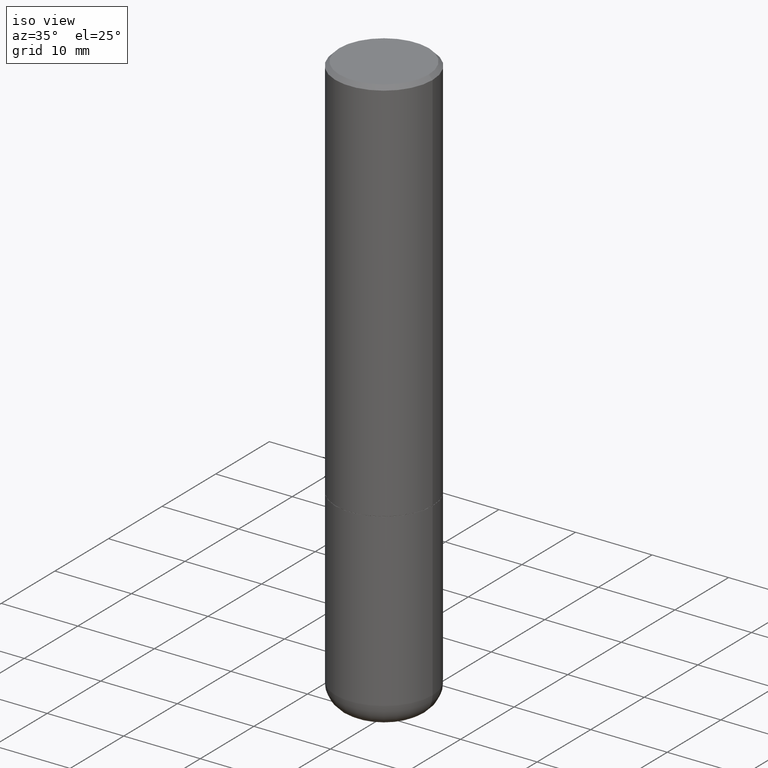
[diagram: clean part render]
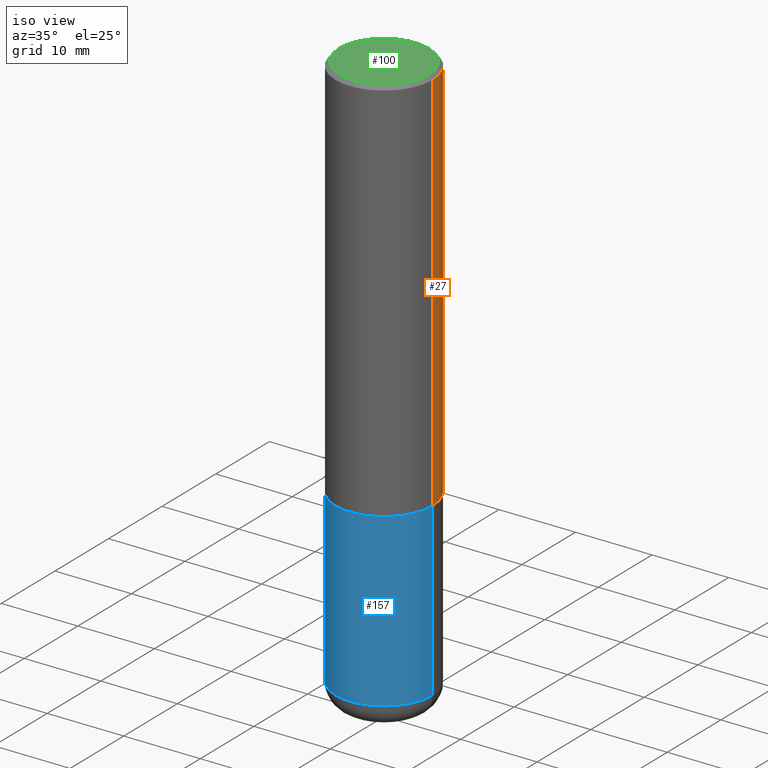
[diagram: same view with three faces highlighted in distinct colors, each labeled with its STEP entity id]
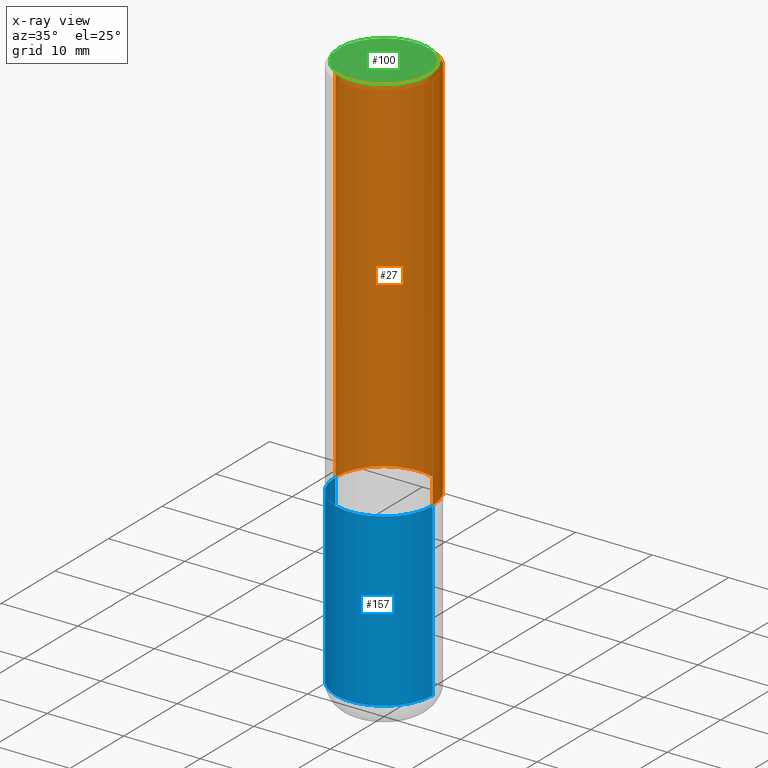
[diagram: x-ray of the same camera — body ghosted, the three highlighted faces saturated]
A machine part, iso view with three faces highlighted in distinct colors.
The next image is the same camera in x-ray (body ghosted, the three faces saturated) — at least one of them is partly hidden behind the body in this view.
Their STEP definitions:

[orange] entity #27 — the highlighted cylindrical surface (partial cylindrical patch) has radius 6.35 mm, axis along (-0, 0, 1).
#3 = CARTESIAN_POINT ( 'NONE',  ( 4.890937612370287172E-31, -6.982962677686310098E-17, -0.02000000000000005593 ) ) ;
#10 = LINE ( 'NONE', #102, #81 ) ;
#27 = ADVANCED_FACE ( 'NONE', ( #344 ), #110, .T. ) ;
#51 = DIRECTION ( 'NONE',  ( -2.445468806185136597E-29, 3.491481338843145583E-15, 1.000000000000000000 ) ) ;
#63 = ORIENTED_EDGE ( 'NONE', *, *, #381, .T. ) ;
#68 = VERTEX_POINT ( 'NONE', #141 ) ;
#70 = VERTEX_POINT ( 'NONE', #405 ) ;
#76 = CARTESIAN_POINT ( 'NONE',  ( -0.2500000000000000000, 1.675911042644703577E-15, -0.02000000000000005593 ) ) ;
#81 = VECTOR ( 'NONE', #165, 39.37007874015748143 ) ;
#93 = CARTESIAN_POINT ( 'NONE',  ( 4.888492143564088712E-29, -6.979471196347448158E-15, -1.999000000000000110 ) ) ;
#95 = AXIS2_PLACEMENT_3D ( 'NONE', #339, #51, #411 ) ;
#102 = CARTESIAN_POINT ( 'NONE',  ( -0.2500000000000001110, 1.776356839400251254E-15, -1.229733772563727146E-29 ) ) ;
#110 = CYLINDRICAL_SURFACE ( 'NONE', #95, 0.2500000000000001110 ) ;
#111 = EDGE_CURVE ( 'NONE', #244, #68, #271, .T. ) ;
#114 = CIRCLE ( 'NONE', #349, 0.2500000000000000000 ) ;
#118 = ORIENTED_EDGE ( 'NONE', *, *, #111, .F. ) ;
#119 = CIRCLE ( 'NONE', #168, 0.2500000000000002220 ) ;
#121 = CARTESIAN_POINT ( 'NONE',  ( 0.2500000000000002220, -8.725211865769017202E-15, -1.999000000000000110 ) ) ;
#126 = DIRECTION ( 'NONE',  ( -2.445468806185136597E-29, 3.491481338843145583E-15, 1.000000000000000000 ) ) ;
#141 = CARTESIAN_POINT ( 'NONE',  ( 0.2500000000000000000, -1.784954126219746189E-15, -0.02000000000000005593 ) ) ;
#155 = DIRECTION ( 'NONE',  ( 1.000000000000000000, -6.982962677686268288E-15, 0.000000000000000000 ) ) ;
#165 = DIRECTION ( 'NONE',  ( -2.445468806185136877E-29, 3.491481338843145188E-15, 1.000000000000000000 ) ) ;
#168 = AXIS2_PLACEMENT_3D ( 'NONE', #93, #196, #155 ) ;
#188 = DIRECTION ( 'NONE',  ( -2.445468806185136877E-29, 3.491481338843145188E-15, 1.000000000000000000 ) ) ;
#196 = DIRECTION ( 'NONE',  ( -2.445468806185136597E-29, 3.491481338843145583E-15, 1.000000000000000000 ) ) ;
#204 = EDGE_CURVE ( 'NONE', #68, #396, #114, .T. ) ;
#217 = EDGE_CURVE ( 'NONE', #244, #70, #119, .T. ) ;
#219 = CARTESIAN_POINT ( 'NONE',  ( 0.2500000000000001110, -1.745740669421567664E-15, 1.219044193948984649E-29 ) ) ;
#244 = VERTEX_POINT ( 'NONE', #121 ) ;
#253 = EDGE_LOOP ( 'NONE', ( #389, #63, #347, #118 ) ) ;
#259 = DIRECTION ( 'NONE',  ( 1.000000000000000000, -6.982962677686266711E-15, 0.000000000000000000 ) ) ;
#271 = LINE ( 'NONE', #219, #406 ) ;
#339 = CARTESIAN_POINT ( 'NONE',  ( 0.000000000000000000, 0.000000000000000000, 0.000000000000000000 ) ) ;
#344 = FACE_OUTER_BOUND ( 'NONE', #253, .T. ) ;
#347 = ORIENTED_EDGE ( 'NONE', *, *, #204, .F. ) ;
#349 = AXIS2_PLACEMENT_3D ( 'NONE', #3, #126, #259 ) ;
#381 = EDGE_CURVE ( 'NONE', #70, #396, #10, .T. ) ;
#389 = ORIENTED_EDGE ( 'NONE', *, *, #217, .T. ) ;
#396 = VERTEX_POINT ( 'NONE', #76 ) ;
#405 = CARTESIAN_POINT ( 'NONE',  ( -0.2500000000000002220, -1.748293572161901516E-15, -1.999000000000000110 ) ) ;
#406 = VECTOR ( 'NONE', #188, 39.37007874015748143 ) ;
#411 = DIRECTION ( 'NONE',  ( 1.000000000000000000, -6.982962677686267499E-15, 4.876176775795936353E-29 ) ) ;

[blue] entity #157 — the highlighted cylindrical surface (partial cylindrical patch) has radius 6.35 mm, axis along (-0, 0, 1).
#2 = ORIENTED_EDGE ( 'NONE', *, *, #172, .F. ) ;
#7 = VERTEX_POINT ( 'NONE', #149 ) ;
#24 = ORIENTED_EDGE ( 'NONE', *, *, #75, .T. ) ;
#47 = EDGE_CURVE ( 'NONE', #373, #160, #186, .T. ) ;
#54 = CARTESIAN_POINT ( 'NONE',  ( 7.042950161813194609E-29, -1.005546625586826130E-14, -2.880000000000000338 ) ) ;
#69 = CARTESIAN_POINT ( 'NONE',  ( 4.890937612370273754E-29, -6.982962677686291954E-15, -2.000000000000000444 ) ) ;
#71 = CARTESIAN_POINT ( 'NONE',  ( 0.2500000000000000000, -8.728703347107858632E-15, -2.000000000000000444 ) ) ;
#75 = EDGE_CURVE ( 'NONE', #160, #251, #113, .T. ) ;
#113 = LINE ( 'NONE', #369, #215 ) ;
#137 = CIRCLE ( 'NONE', #333, 0.2500000000000000000 ) ;
#147 = EDGE_CURVE ( 'NONE', #373, #7, #352, .T. ) ;
#149 = CARTESIAN_POINT ( 'NONE',  ( -0.2500000000000000000, -6.742857627377025372E-15, -2.000000000000000444 ) ) ;
#151 = DIRECTION ( 'NONE',  ( -2.445468806185136877E-29, 3.491481338843145188E-15, 1.000000000000000000 ) ) ;
#152 = DIRECTION ( 'NONE',  ( -2.445468806185136877E-29, 3.491481338843145188E-15, 1.000000000000000000 ) ) ;
#157 = ADVANCED_FACE ( 'NONE', ( #325 ), #223, .T. ) ;
#159 = DIRECTION ( 'NONE',  ( 1.000000000000000000, -6.982962677686266711E-15, 0.000000000000000000 ) ) ;
#160 = VERTEX_POINT ( 'NONE', #255 ) ;
#172 = EDGE_CURVE ( 'NONE', #7, #251, #137, .T. ) ;
#176 = DIRECTION ( 'NONE',  ( 1.000000000000000000, -6.982962677686262766E-15, 0.000000000000000000 ) ) ;
#185 = EDGE_LOOP ( 'NONE', ( #314, #337, #24, #2 ) ) ;
#186 = CIRCLE ( 'NONE', #207, 0.2500000000000000000 ) ;
#190 = CARTESIAN_POINT ( 'NONE',  ( -0.2500000000000000000, 1.776356839400250465E-15, -1.229733772563726445E-29 ) ) ;
#193 = CARTESIAN_POINT ( 'NONE',  ( 0.000000000000000000, 0.000000000000000000, 0.000000000000000000 ) ) ;
#207 = AXIS2_PLACEMENT_3D ( 'NONE', #54, #305, #176 ) ;
#215 = VECTOR ( 'NONE', #151, 39.37007874015748143 ) ;
#218 = DIRECTION ( 'NONE',  ( -2.445468806185136597E-29, 3.491481338843145583E-15, 1.000000000000000000 ) ) ;
#223 = CYLINDRICAL_SURFACE ( 'NONE', #298, 0.2500000000000000000 ) ;
#251 = VERTEX_POINT ( 'NONE', #71 ) ;
#255 = CARTESIAN_POINT ( 'NONE',  ( 0.2499999999999999722, -1.180120692528982640E-14, -2.880000000000000338 ) ) ;
#291 = VECTOR ( 'NONE', #152, 39.37007874015748143 ) ;
#298 = AXIS2_PLACEMENT_3D ( 'NONE', #193, #382, #384 ) ;
#305 = DIRECTION ( 'NONE',  ( -2.445468806185136597E-29, 3.491481338843145583E-15, 1.000000000000000000 ) ) ;
#314 = ORIENTED_EDGE ( 'NONE', *, *, #147, .F. ) ;
#325 = FACE_OUTER_BOUND ( 'NONE', #185, .T. ) ;
#333 = AXIS2_PLACEMENT_3D ( 'NONE', #69, #218, #159 ) ;
#337 = ORIENTED_EDGE ( 'NONE', *, *, #47, .T. ) ;
#352 = LINE ( 'NONE', #190, #291 ) ;
#369 = CARTESIAN_POINT ( 'NONE',  ( 0.2500000000000000000, -1.745740669421566678E-15, 1.219044193948983948E-29 ) ) ;
#373 = VERTEX_POINT ( 'NONE', #397 ) ;
#382 = DIRECTION ( 'NONE',  ( -2.445468806185136597E-29, 3.491481338843145583E-15, 1.000000000000000000 ) ) ;
#384 = DIRECTION ( 'NONE',  ( 1.000000000000000000, -6.982962677686266711E-15, 4.876176775795935793E-29 ) ) ;
#397 = CARTESIAN_POINT ( 'NONE',  ( -0.2499999999999999722, -8.279109416468010833E-15, -2.880000000000000338 ) ) ;

[green] entity #100 — the highlighted planar face has unit normal (0, -0, -1).
#29 = AXIS2_PLACEMENT_3D ( 'NONE', #74, #92, #348 ) ;
#46 = CARTESIAN_POINT ( 'NONE',  ( 0.2299999999999998990, -1.681434332853598617E-15, 9.817578727232095644E-17 ) ) ;
#49 = AXIS2_PLACEMENT_3D ( 'NONE', #229, #267, #167 ) ;
#74 = CARTESIAN_POINT ( 'NONE',  ( -2.400858252971005371E-45, 3.427789291875028588E-31, 9.817578727230945633E-17 ) ) ;
#91 = DIRECTION ( 'NONE',  ( 2.438088387897960049E-29, -3.491481338843145188E-15, -1.000000000000000000 ) ) ;
#92 = DIRECTION ( 'NONE',  ( -2.445468806185136597E-29, 3.491481338843145583E-15, 1.000000000000000000 ) ) ;
#99 = ORIENTED_EDGE ( 'NONE', *, *, #138, .T. ) ;
#100 = ADVANCED_FACE ( 'NONE', ( #117 ), #246, .F. ) ;
#117 = FACE_OUTER_BOUND ( 'NONE', #345, .T. ) ;
#138 = EDGE_CURVE ( 'NONE', #351, #312, #413, .T. ) ;
#167 = DIRECTION ( 'NONE',  ( 1.000000000000000000, -6.982962677686267499E-15, 4.879110437680777679E-29 ) ) ;
#216 = DIRECTION ( 'NONE',  ( -1.000000000000000000, 6.982962677686265922E-15, -4.876176775795935793E-29 ) ) ;
#229 = CARTESIAN_POINT ( 'NONE',  ( -2.400858252971005371E-45, 3.427789291875028588E-31, 9.817578727230945633E-17 ) ) ;
#243 = ORIENTED_EDGE ( 'NONE', *, *, #324, .T. ) ;
#246 = PLANE ( 'NONE',  #367 ) ;
#267 = DIRECTION ( 'NONE',  ( -2.445468806185136597E-29, 3.491481338843145583E-15, 1.000000000000000000 ) ) ;
#312 = VERTEX_POINT ( 'NONE', #46 ) ;
#324 = EDGE_CURVE ( 'NONE', #312, #351, #357, .T. ) ;
#345 = EDGE_LOOP ( 'NONE', ( #99, #243 ) ) ;
#348 = DIRECTION ( 'NONE',  ( 1.000000000000000000, -6.982962677686267499E-15, 4.879110437680777679E-29 ) ) ;
#351 = VERTEX_POINT ( 'NONE', #401 ) ;
#357 = CIRCLE ( 'NONE', #49, 0.2299999999999998990 ) ;
#367 = AXIS2_PLACEMENT_3D ( 'NONE', #376, #91, #216 ) ;
#376 = CARTESIAN_POINT ( 'NONE',  ( 1.606081415867840476E-15, 0.2299999999999998990, -7.539528142977684864E-16 ) ) ;
#401 = CARTESIAN_POINT ( 'NONE',  ( -0.2299999999999998990, 1.640996229256272125E-15, 9.817578727229810413E-17 ) ) ;
#413 = CIRCLE ( 'NONE', #29, 0.2299999999999998990 ) ;